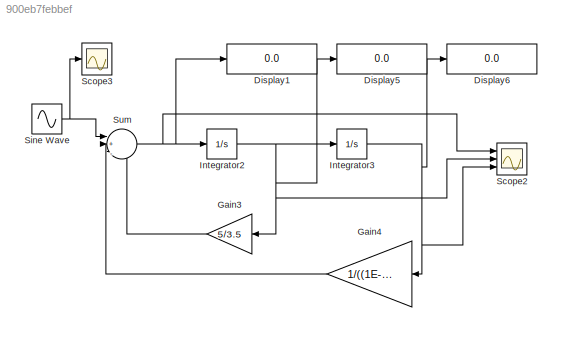
MODEL slx_900eb7febbef
KIND model
BLOCK [Display] Display1
  Decimation = 1
  Lockdown = off
  Ports = [1]
BLOCK [Display] Display5
  Decimation = 1
  Lockdown = off
  Ports = [1]
BLOCK [Display] Display6
  Decimation = 1
  Lockdown = off
  Ports = [1]
BLOCK [Gain] Gain3
  Gain = 5/3.5
  OutDataTypeStr = Inherit: Inherit via internal rule
  ParamDataTypeStr = Inherit: Inherit via internal rule
  SaturateOnIntegerOverflow = off
BLOCK [Gain] Gain4
  Gain = 1/((1E-3)*3.5)
  OutDataTypeStr = Inherit: Inherit via internal rule
  ParamDataTypeStr = Inherit: Inherit via internal rule
  SaturateOnIntegerOverflow = off
BLOCK [Integrator] Integrator2
  Ports = [1, 1]
BLOCK [Integrator] Integrator3
  Ports = [1, 1]
BLOCK [Scope] Scope2
  DataFormat = StructureWithTime
  Floating = off
  NumInputPorts = 3
  Ports = [3]
  SampleTime = 0
  ShowLegends = off
  YMax = 5~5~5
  YMin = -5~-5~-5
BLOCK [Scope] Scope3
  DataFormat = StructureWithTime
  Floating = off
  NumInputPorts = 1
  Ports = [1]
  SampleTime = 0
  SaveName = ScopeData2
  ShowLegends = off
BLOCK [Sin] Sine Wave
  Amplitude = 12/3.5
  Ports = [0, 1]
  SampleTime = 0
BLOCK [Sum] Sum
  IconShape = round
  InputSameDT = off
  Inputs = |+|--
  OutDataTypeStr = Inherit: Inherit via internal rule
  Ports = [3, 1]
  SaturateOnIntegerOverflow = off
LINE Gain3:1 -> Sum:3
LINE Gain4:1 -> Sum:2
NET Integrator2:1 -> Display5:1, Gain3:1, Integrator3:1, Scope2:2
NET Integrator3:1 -> Display6:1, Gain4:1, Scope2:3
NET Sine Wave:1 -> Scope3:1, Sum:1
NET Sum:1 -> Display1:1, Integrator2:1, Scope2:1
note: NET lines group one-source signal fan-out (src -> all destinations, sorted); 1:1 wires keep LINE
